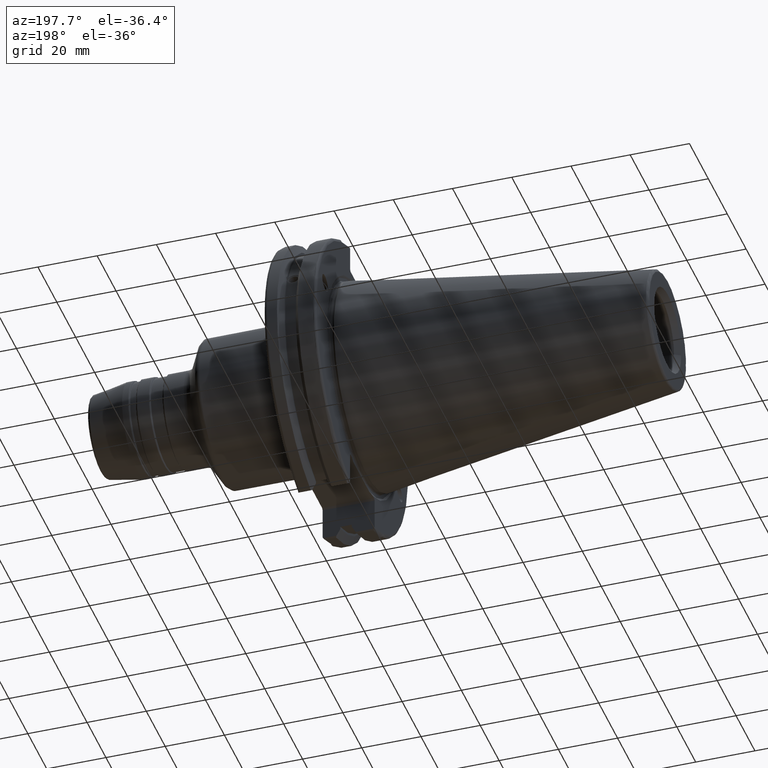
[diagram: clean part render]
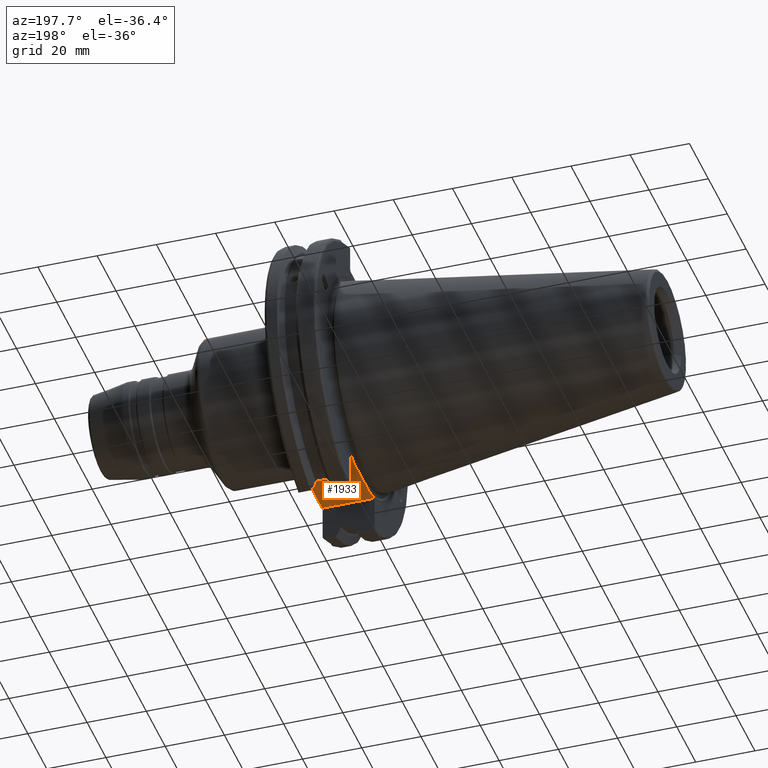
[diagram: same view with one face highlighted and labeled with its STEP entity id]
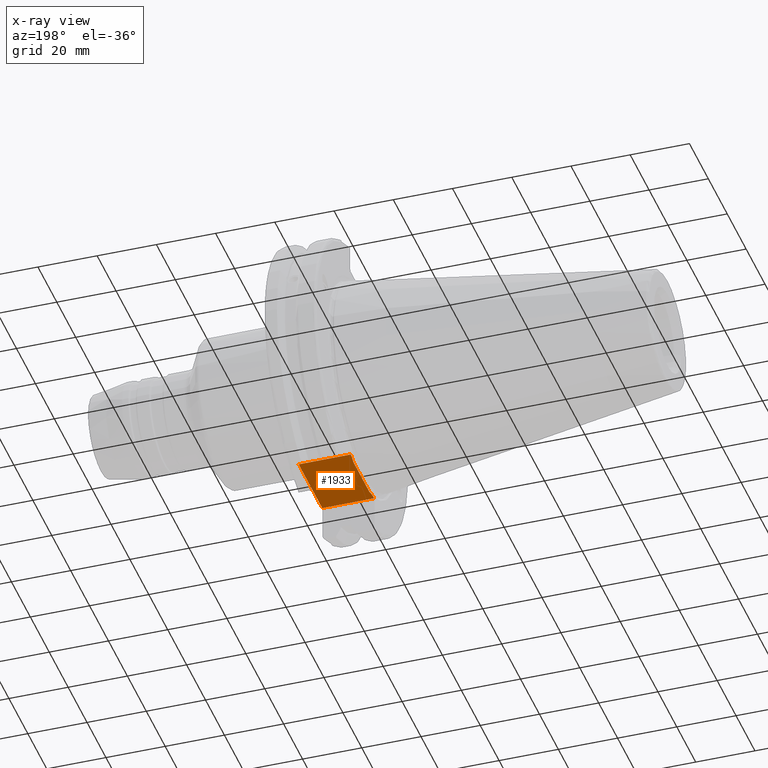
[diagram: x-ray of the same camera — body ghosted, the highlighted face saturated]
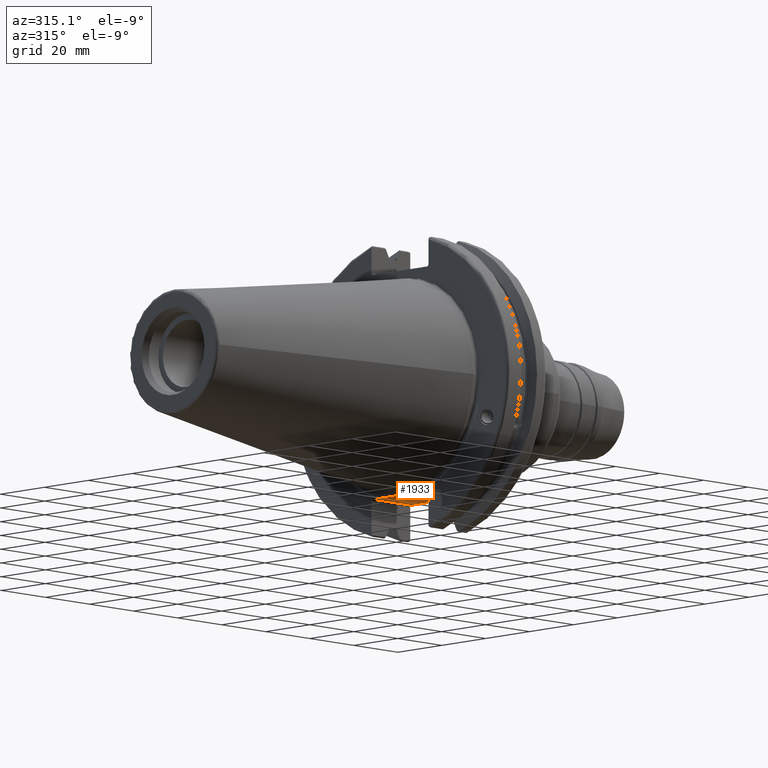
[diagram: same view with one face highlighted and labeled with its STEP entity id]
A machine part, auxiliary view. The second image highlights one B-rep face of the part: STEP entity #1933.
The next image is the same camera in x-ray: the body ghosted, the highlighted face saturated — about 0% of this face is hidden behind the body in this view.
A second angle (auxiliary view) of the same face is appended — the face is thin or edge-on in the first view.
In plain terms, the highlighted planar face has unit normal (0, 0, 1).
Its self-contained STEP definition (entity closure, byte-faithful):
#29=(
BOUNDED_CURVE()
B_SPLINE_CURVE(2,(#3804,#3805,#3806),.UNSPECIFIED.,.F.,.F.)
B_SPLINE_CURVE_WITH_KNOTS((3,3),(0.,0.263061266239573),.UNSPECIFIED.)
CURVE()
GEOMETRIC_REPRESENTATION_ITEM()
RATIONAL_B_SPLINE_CURVE((1.,1.00062951069793,1.))
REPRESENTATION_ITEM('')
);
#30=(
BOUNDED_CURVE()
B_SPLINE_CURVE(2,(#3809,#3810,#3811),.UNSPECIFIED.,.F.,.F.)
B_SPLINE_CURVE_WITH_KNOTS((3,3),(0.,0.263061266239573),.UNSPECIFIED.)
CURVE()
GEOMETRIC_REPRESENTATION_ITEM()
RATIONAL_B_SPLINE_CURVE((1.,1.00062951069793,1.))
REPRESENTATION_ITEM('')
);
#115=PLANE('',#2180);
#168=LINE('',#2977,#272);
#228=LINE('',#3776,#332);
#229=LINE('',#3780,#333);
#233=LINE('',#3800,#337);
#234=LINE('',#3802,#338);
#235=LINE('',#3808,#339);
#272=VECTOR('',#2416,10.);
#332=VECTOR('',#2670,10.);
#333=VECTOR('',#2673,10.);
#337=VECTOR('',#2699,10.);
#338=VECTOR('',#2702,10.);
#339=VECTOR('',#2703,10.);
#467=FACE_OUTER_BOUND('',#590,.T.);
#590=EDGE_LOOP('',(#1693,#1694,#1695,#1696,#1697,#1698,#1699,#1700));
#811=VERTEX_POINT('',#2974);
#812=VERTEX_POINT('',#2976);
#927=VERTEX_POINT('',#3773);
#928=VERTEX_POINT('',#3775);
#929=VERTEX_POINT('',#3777);
#930=VERTEX_POINT('',#3779);
#936=VERTEX_POINT('',#3803);
#937=VERTEX_POINT('',#3807);
#1030=EDGE_CURVE('',#811,#812,#168,.T.);
#1193=EDGE_CURVE('',#927,#928,#228,.T.);
#1195=EDGE_CURVE('',#929,#930,#229,.T.);
#1205=EDGE_CURVE('',#812,#927,#233,.T.);
#1206=EDGE_CURVE('',#930,#811,#234,.T.);
#1207=EDGE_CURVE('',#936,#929,#29,.T.);
#1208=EDGE_CURVE('',#937,#936,#235,.T.);
#1209=EDGE_CURVE('',#928,#937,#30,.T.);
#1693=ORIENTED_EDGE('',*,*,#1205,.F.);
#1694=ORIENTED_EDGE('',*,*,#1030,.F.);
#1695=ORIENTED_EDGE('',*,*,#1206,.F.);
#1696=ORIENTED_EDGE('',*,*,#1195,.F.);
#1697=ORIENTED_EDGE('',*,*,#1207,.F.);
#1698=ORIENTED_EDGE('',*,*,#1208,.F.);
#1699=ORIENTED_EDGE('',*,*,#1209,.F.);
#1700=ORIENTED_EDGE('',*,*,#1193,.F.);
#1933=ADVANCED_FACE('',(#467),#115,.F.);
#2180=AXIS2_PLACEMENT_3D('',#3801,#2700,#2701);
#2416=DIRECTION('',(0.,1.,0.));
#2670=DIRECTION('',(0.,-1.,0.));
#2673=DIRECTION('',(0.,-1.,0.));
#2699=DIRECTION('',(-1.,-1.19700595646917E-16,0.));
#2700=DIRECTION('center_axis',(0.,0.,1.));
#2701=DIRECTION('ref_axis',(1.,0.,0.));
#2702=DIRECTION('',(1.,2.39401191293834E-16,0.));
#2703=DIRECTION('',(0.,-1.,0.));
#2974=CARTESIAN_POINT('',(19.05,-12.45,-35.306));
#2976=CARTESIAN_POINT('',(19.05,12.45,-35.306));
#2977=CARTESIAN_POINT('',(19.05,-3.88578058618805E-15,-35.306));
#3773=CARTESIAN_POINT('',(1.5,12.45,-35.306));
#3775=CARTESIAN_POINT('',(1.49999999999999,11.0673557817575,-35.306));
#3776=CARTESIAN_POINT('',(1.5,24.60625,-35.306));
#3777=CARTESIAN_POINT('',(1.5,-11.0673557817575,-35.306));
#3779=CARTESIAN_POINT('',(1.5,-12.45,-35.306));
#3780=CARTESIAN_POINT('',(1.5,24.60625,-35.306));
#3800=CARTESIAN_POINT('',(9.37499999999999,12.45,-35.306));
#3801=CARTESIAN_POINT('Origin',(17.25,-7.7715611723761E-15,-35.306));
#3802=CARTESIAN_POINT('',(18.65,-12.45,-35.306));
#3803=CARTESIAN_POINT('',(1.9,-8.46744708256043,-35.306));
#3804=CARTESIAN_POINT('Ctrl Pts',(1.9,-8.46744708256047,-35.306));
#3805=CARTESIAN_POINT('Ctrl Pts',(1.72661822304788,-9.75511566702161,-35.306));
#3806=CARTESIAN_POINT('Ctrl Pts',(1.5,-11.0673557817575,-35.306));
#3807=CARTESIAN_POINT('',(1.9,8.46744708256043,-35.306));
#3808=CARTESIAN_POINT('',(1.9,18.1535898384862,-35.306));
#3809=CARTESIAN_POINT('Ctrl Pts',(1.5,11.0673557817575,-35.306));
#3810=CARTESIAN_POINT('Ctrl Pts',(1.72661822304788,9.75511566702161,-35.306));
#3811=CARTESIAN_POINT('Ctrl Pts',(1.9,8.46744708256047,-35.306));